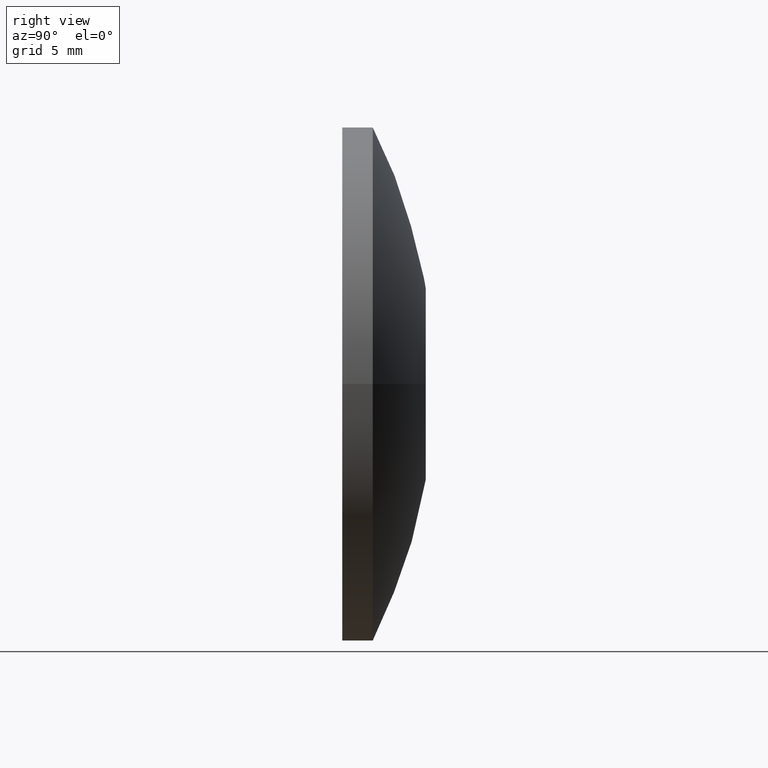
[diagram: clean part render]
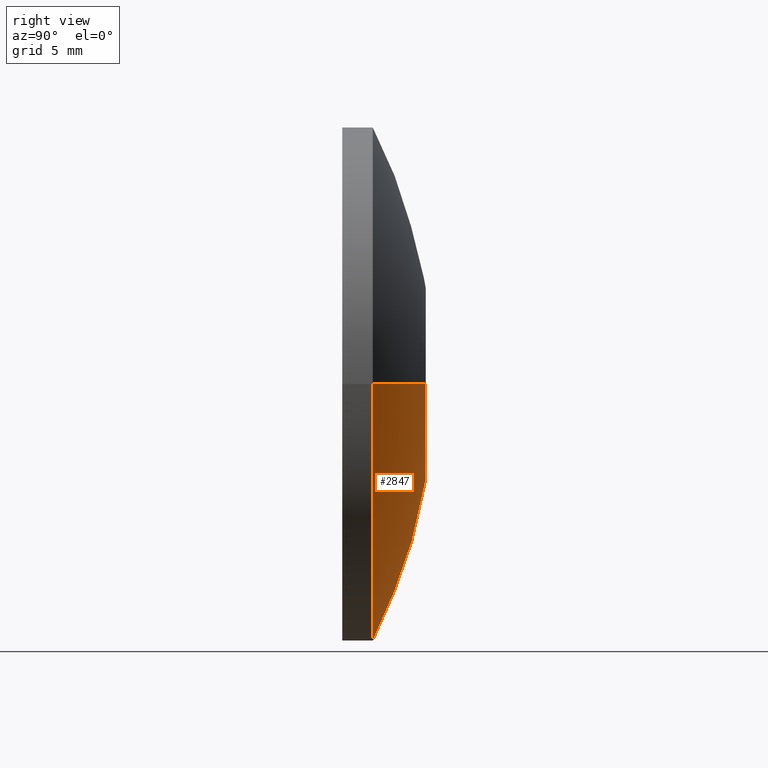
[diagram: same view with one face highlighted and labeled with its STEP entity id]
A machine part, right view. The second image highlights one B-rep face of the part: STEP entity #2847.
In plain terms, the highlighted spherical surface has radius 37.4903 mm.
Its self-contained STEP definition (entity closure, byte-faithful):
#579 = EDGE_LOOP ( 'NONE', ( #11035, #8680, #7280, #8995, #8762 ) ) ;
#692 = DIRECTION ( 'NONE',  ( 1.000000000000000000, -5.922719500538483000E-015, 0.0000000000000000000 ) ) ;
#1085 = EDGE_CURVE ( 'NONE', #1111, #5464, #3998, .T. ) ;
#1111 = VERTEX_POINT ( 'NONE', #1209 ) ;
#1209 = CARTESIAN_POINT ( 'NONE',  ( -6.250000000000000900, 5.475361189893106100, 1.414467053015205500E-015 ) ) ;
#1508 = AXIS2_PLACEMENT_3D ( 'NONE', #6692, #10511, #6736 ) ;
#1654 = EDGE_CURVE ( 'NONE', #1111, #9960, #7144, .T. ) ;
#1673 = CARTESIAN_POINT ( 'NONE',  ( 1.167220775306751800E-014, -31.49031249999995200, 0.0000000000000000000 ) ) ;
#2113 = CARTESIAN_POINT ( 'NONE',  ( -16.84999999999979500, 2.000000000000190500, 2.063529856563290200E-015 ) ) ;
#2146 = DIRECTION ( 'NONE',  ( -0.0000000000000000000, -1.000000000000000000, -0.0000000000000000000 ) ) ;
#2762 = CARTESIAN_POINT ( 'NONE',  ( 6.250000000000000000, 5.475361189893106100, 0.0000000000000000000 ) ) ;
#2847 = ADVANCED_FACE ( 'NONE', ( #8761 ), #3381, .T. ) ;
#3046 = VERTEX_POINT ( 'NONE', #2762 ) ;
#3381 = SPHERICAL_SURFACE ( 'NONE', #12288, 37.49031249999994500 ) ;
#3407 = VERTEX_POINT ( 'NONE', #8026 ) ;
#3618 = AXIS2_PLACEMENT_3D ( 'NONE', #7794, #2146, #4925 ) ;
#3633 = CIRCLE ( 'NONE', #4131, 37.49031249999994500 ) ;
#3777 = CIRCLE ( 'NONE', #9578, 6.250000000000000000 ) ;
#3936 = DIRECTION ( 'NONE',  ( -1.000000000000000000, 0.0000000000000000000, 0.0000000000000000000 ) ) ;
#3998 = CIRCLE ( 'NONE', #3618, 6.250000000000000000 ) ;
#4131 = AXIS2_PLACEMENT_3D ( 'NONE', #9709, #4960, #3936 ) ;
#4149 = CARTESIAN_POINT ( 'NONE',  ( -1.167220775306714700E-014, 2.000000000000093300, 0.0000000000000000000 ) ) ;
#4516 = AXIS2_PLACEMENT_3D ( 'NONE', #4149, #11749, #6078 ) ;
#4925 = DIRECTION ( 'NONE',  ( 0.0000000000000000000, 0.0000000000000000000, -1.000000000000000000 ) ) ;
#4960 = DIRECTION ( 'NONE',  ( 0.0000000000000000000, 0.0000000000000000000, -1.000000000000000000 ) ) ;
#5464 = VERTEX_POINT ( 'NONE', #8686 ) ;
#5522 = DIRECTION ( 'NONE',  ( -0.0000000000000000000, 0.0000000000000000000, 1.000000000000000000 ) ) ;
#5530 = EDGE_CURVE ( 'NONE', #9960, #3407, #10055, .T. ) ;
#5905 = EDGE_CURVE ( 'NONE', #3046, #3407, #3633, .T. ) ;
#6078 = DIRECTION ( 'NONE',  ( 1.000000000000000000, -5.842466306331382200E-015, 0.0000000000000000000 ) ) ;
#6692 = CARTESIAN_POINT ( 'NONE',  ( 1.167220775306751800E-014, -31.49031249999995200, 0.0000000000000000000 ) ) ;
#6736 = DIRECTION ( 'NONE',  ( 1.000000000000000000, 0.0000000000000000000, -1.224646799147353000E-016 ) ) ;
#7144 = CIRCLE ( 'NONE', #1508, 37.49031249999994500 ) ;
#7280 = ORIENTED_EDGE ( 'NONE', *, *, #9350, .T. ) ;
#7496 = DIRECTION ( 'NONE',  ( 0.0000000000000000000, 0.0000000000000000000, -1.000000000000000000 ) ) ;
#7794 = CARTESIAN_POINT ( 'NONE',  ( 0.0000000000000000000, 5.475361189893106100, 0.0000000000000000000 ) ) ;
#8026 = CARTESIAN_POINT ( 'NONE',  ( 16.84999999999999400, 1.999999999999994900, 0.0000000000000000000 ) ) ;
#8680 = ORIENTED_EDGE ( 'NONE', *, *, #1085, .T. ) ;
#8686 = CARTESIAN_POINT ( 'NONE',  ( 0.0000000000000000000, 5.475361189893106100, -6.250000000000000000 ) ) ;
#8761 = FACE_OUTER_BOUND ( 'NONE', #579, .T. ) ;
#8762 = ORIENTED_EDGE ( 'NONE', *, *, #5530, .F. ) ;
#8995 = ORIENTED_EDGE ( 'NONE', *, *, #5905, .T. ) ;
#9350 = EDGE_CURVE ( 'NONE', #5464, #3046, #3777, .T. ) ;
#9578 = AXIS2_PLACEMENT_3D ( 'NONE', #10318, #12164, #7496 ) ;
#9709 = CARTESIAN_POINT ( 'NONE',  ( 1.167220775306751800E-014, -31.49031249999995200, 0.0000000000000000000 ) ) ;
#9960 = VERTEX_POINT ( 'NONE', #2113 ) ;
#10055 = CIRCLE ( 'NONE', #4516, 16.85000000000000100 ) ;
#10318 = CARTESIAN_POINT ( 'NONE',  ( 0.0000000000000000000, 5.475361189893106100, 0.0000000000000000000 ) ) ;
#10511 = DIRECTION ( 'NONE',  ( 1.224646799147353200E-016, -7.147165931888596700E-031, 1.000000000000000000 ) ) ;
#11035 = ORIENTED_EDGE ( 'NONE', *, *, #1654, .F. ) ;
#11749 = DIRECTION ( 'NONE',  ( -5.836103876533815000E-015, -1.000000000000000000, -0.0000000000000000000 ) ) ;
#12164 = DIRECTION ( 'NONE',  ( -0.0000000000000000000, -1.000000000000000000, -0.0000000000000000000 ) ) ;
#12288 = AXIS2_PLACEMENT_3D ( 'NONE', #1673, #5522, #692 ) ;